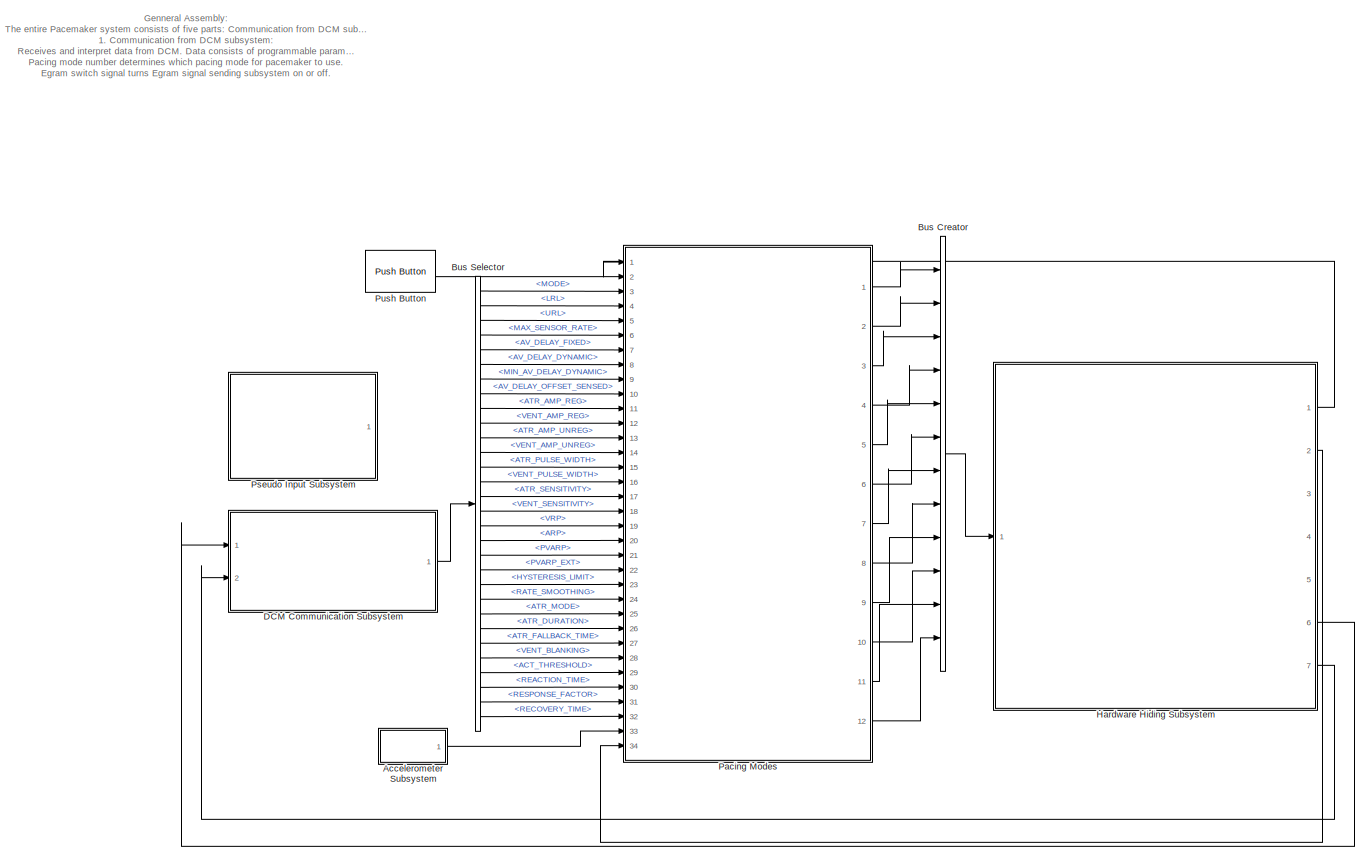
[diagram: root canvas - part 1/1, most of the canvas]
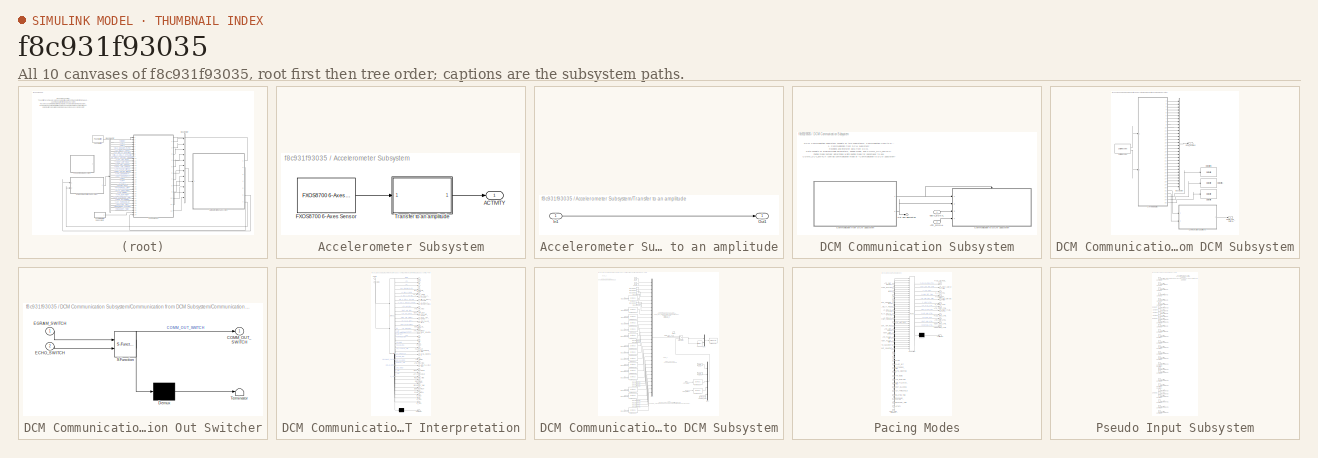
[diagram: thumbnail index - all 10 canvases of the model, root first then tree order]
MODEL slx_f8c931f93035
KIND model
CONFIG AbsTol = auto
CONFIG EnableMultiTasking = on
CONFIG FixedStep = 1e-3
CONFIG MaxStep = auto
CONFIG MinStep = auto
CONFIG RelTol = 1e-3
CONFIG SampleTimeConstraint = Unconstrained
CONFIG Solver = FixedStepAuto
CONFIG SolverName = FixedStepAuto
CONFIG StartTime = 0.0
CONFIG StopTime = 10.0
BLOCK [SubSystem] Accelerometer Subsystem
  Ports = [0, 1]
  RequestExecContextInheritance = off
BLOCK [Outport] Accelerometer Subsystem/ACTIVITY
BLOCK [Reference] Accelerometer Subsystem/FXOS8700 6-Axes Sensor  REF=frdmk64flib/FXOS8700 6-Axes Sensor
  Ports = [0, 1]
  SourceBlock = frdmk64flib/FXOS8700 6-Axes Sensor
  SourceProductBaseCode = EC_FRDM_K64F
  SourceType = freedomk64f.fxos8700
BLOCK [SubSystem] Accelerometer Subsystem/Transfer to an amplitude
  Ports = [1, 1]
  RequestExecContextInheritance = off
BLOCK [Inport] Accelerometer Subsystem/Transfer to an amplitude/In1
BLOCK [Outport] Accelerometer Subsystem/Transfer to an amplitude/Out1
BLOCK [BusCreator] Bus Creator
  DisplayOption = bar
  InheritFromInputs = on
  Inputs = 12
  Ports = [12, 1]
BLOCK [BusSelector] Bus Selector
  OutputSignals = MODE,LRL,URL,MAX_SENSOR_RATE,AV_DELAY_FIXED,AV_DELAY_DYNAMIC,MIN_AV_DELAY_DYNAMIC,AV_DELAY_OFFSET_SENSED,ATR_AMP_REG,VENT_AMP_REG,ATR_AMP_UNREG,VENT_AMP_UNREG,ATR_PULSE_WIDTH,VENT_PULSE_WIDTH,ATR_SENSITIVITY,VENT_SENSITIVITY,VRP,ARP,PVARP,PVARP_EXT,HYSTERESIS_LIMIT,RATE_SMOOTHING,ATR_MODE,ATR_DURATION,ATR_FALLBACK_TIME,VENT_BLANKING,ACT_THRESHOLD,REACTION_TIME,RESPONSE_FACTOR,RECOVERY_TIME
  Ports = [1, 30]
BLOCK [SubSystem] DCM Communication Subsystem
  Ports = [2, 1]
  RequestExecContextInheritance = off
BLOCK [Inport] DCM Communication Subsystem/ATR_SIGNAL
  OutDataTypeStr = double
  Port = 2
BLOCK [SubSystem] DCM Communication Subsystem/Communication from DCM Subsystem
  Ports = [0, 2]
  RequestExecContextInheritance = off
BLOCK [BusCreator] DCM Communication Subsystem/Communication from DCM Subsystem/Bus Creator
  DisplayOption = bar
  InheritFromInputs = on
  Inputs = 30
  Ports = [30, 1]
BLOCK [Outport] DCM Communication Subsystem/Communication from DCM Subsystem/COMM_OUT_SWITCH
BLOCK [SubSystem] DCM Communication Subsystem/Communication from DCM Subsystem/Communication Out Switcher
  ErrorFcn = Stateflow.Translate.translate
  PermitHierarchicalResolution = ExplicitOnly
  Ports = [2, 1]
  RequestExecContextInheritance = off
  SFBlockType = Chart
  TreatAsAtomicUnit = on
BLOCK [Demux] DCM Communication Subsystem/Communication from DCM Subsystem/Communication Out Switcher/ Demux 
  Outputs = 1
  Ports = [1, 1]
BLOCK [S-Function] DCM Communication Subsystem/Communication from DCM Subsystem/Communication Out Switcher/ SFunction 
  EnableBusSupport = on
  FunctionName = sf_sfun
  PortCounts = [2 2]
  Ports = [2, 2]
  SFcnIsStateOwnerBlock = off
  SFunctionDeploymentMode = off
  Tag = Stateflow S-Function 3
BLOCK [Terminator] DCM Communication Subsystem/Communication from DCM Subsystem/Communication Out Switcher/ Terminator 
BLOCK [Outport] DCM Communication Subsystem/Communication from DCM Subsystem/Communication Out Switcher/COMM_OUT_SWITCH
BLOCK [Inport] DCM Communication Subsystem/Communication from DCM Subsystem/Communication Out Switcher/ECHO_SWITCH
  Port = 2
BLOCK [Inport] DCM Communication Subsystem/Communication from DCM Subsystem/Communication Out Switcher/EGRAM_SWITCH
BLOCK [Outport] DCM Communication Subsystem/Communication from DCM Subsystem/DCM_InputBus
  Port = 2
BLOCK [Reference] DCM Communication Subsystem/Communication from DCM Subsystem/Digital Write  REF=frdmk64flib/Digital Write
  Commented = on
  Ports = [1]
  SourceBlock = frdmk64flib/Digital Write
  SourceProductBaseCode = EC_FRDM_K64F
  SourceType = freedomk64f.DigitalWrite
BLOCK [Reference] DCM Communication Subsystem/Communication from DCM Subsystem/Digital Write1  REF=frdmk64flib/Digital Write
  Commented = on
  Ports = [1]
  SourceBlock = frdmk64flib/Digital Write
  SourceProductBaseCode = EC_FRDM_K64F
  SourceType = freedomk64f.DigitalWrite
BLOCK [Reference] DCM Communication Subsystem/Communication from DCM Subsystem/Digital Write3  REF=frdmk64flib/Digital Write
  Commented = on
  Ports = [1]
  SourceBlock = frdmk64flib/Digital Write
  SourceProductBaseCode = EC_FRDM_K64F
  SourceType = freedomk64f.DigitalWrite
BLOCK [Reference] DCM Communication Subsystem/Communication from DCM Subsystem/Serial Receive  REF=frdmk64flib/Serial Receive
  Ports = [0, 2]
  SourceBlock = frdmk64flib/Serial Receive
  SourceProductBaseCode = EC_FRDM_K64F
  SourceType = freedomk64f.SCIRead
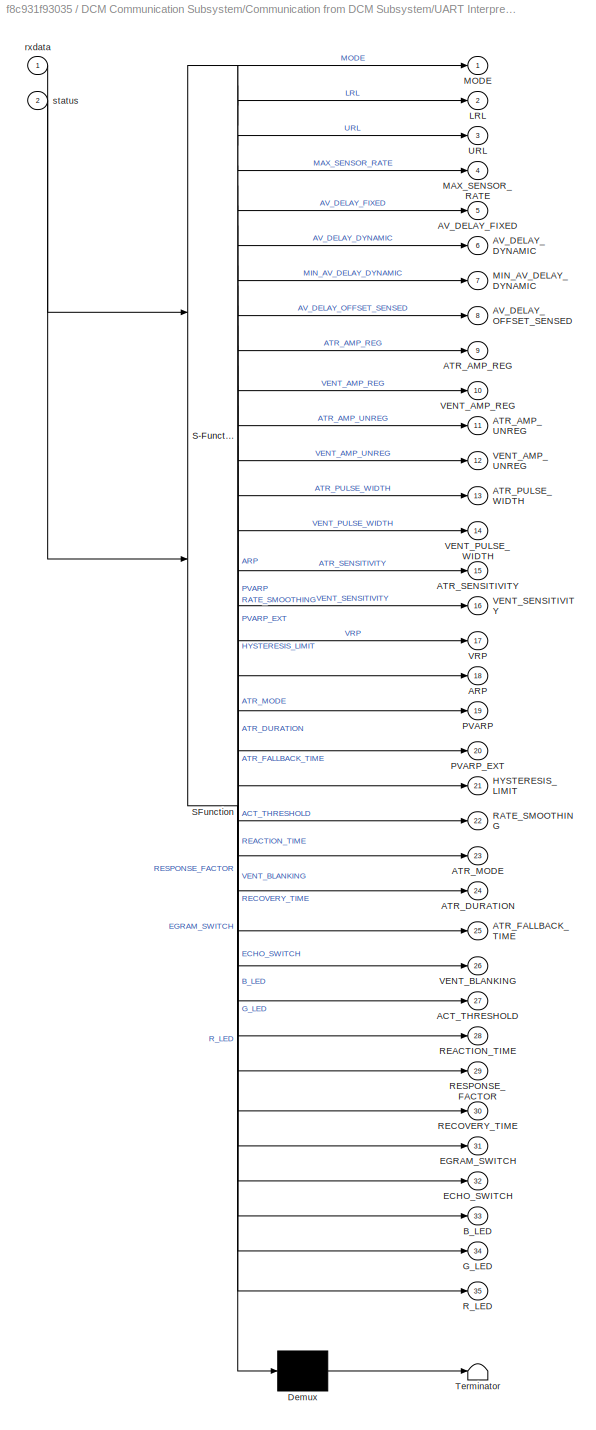
BLOCK [SubSystem] DCM Communication Subsystem/Communication from DCM Subsystem/UART Interpretation
  ErrorFcn = Stateflow.Translate.translate
  PermitHierarchicalResolution = ExplicitOnly
  Ports = [2, 35]
  RequestExecContextInheritance = off
  SFBlockType = Chart
  TreatAsAtomicUnit = on
BLOCK [Demux] DCM Communication Subsystem/Communication from DCM Subsystem/UART Interpretation/ Demux 
  Outputs = 1
  Ports = [1, 1]
BLOCK [S-Function] DCM Communication Subsystem/Communication from DCM Subsystem/UART Interpretation/ SFunction 
  EnableBusSupport = on
  FunctionName = sf_sfun
  PortCounts = [2 36]
  Ports = [2, 36]
  SFcnIsStateOwnerBlock = off
  SFunctionDeploymentMode = off
  Tag = Stateflow S-Function 4
BLOCK [Terminator] DCM Communication Subsystem/Communication from DCM Subsystem/UART Interpretation/ Terminator 
BLOCK [Outport] DCM Communication Subsystem/Communication from DCM Subsystem/UART Interpretation/ACT_THRESHOLD
  Port = 27
BLOCK [Outport] DCM Communication Subsystem/Communication from DCM Subsystem/UART Interpretation/ARP
  Port = 18
BLOCK [Outport] DCM Communication Subsystem/Communication from DCM Subsystem/UART Interpretation/ATR_AMP_REG
  Port = 9
BLOCK [Outport] DCM Communication Subsystem/Communication from DCM Subsystem/UART Interpretation/ATR_AMP_UNREG
  Port = 11
BLOCK [Outport] DCM Communication Subsystem/Communication from DCM Subsystem/UART Interpretation/ATR_DURATION
  Port = 24
BLOCK [Outport] DCM Communication Subsystem/Communication from DCM Subsystem/UART Interpretation/ATR_FALLBACK_TIME
  Port = 25
BLOCK [Outport] DCM Communication Subsystem/Communication from DCM Subsystem/UART Interpretation/ATR_MODE
  Port = 23
BLOCK [Outport] DCM Communication Subsystem/Communication from DCM Subsystem/UART Interpretation/ATR_PULSE_WIDTH
  Port = 13
BLOCK [Outport] DCM Communication Subsystem/Communication from DCM Subsystem/UART Interpretation/ATR_SENSITIVITY
  Port = 15
BLOCK [Outport] DCM Communication Subsystem/Communication from DCM Subsystem/UART Interpretation/AV_DELAY_DYNAMIC
  Port = 6
BLOCK [Outport] DCM Communication Subsystem/Communication from DCM Subsystem/UART Interpretation/AV_DELAY_FIXED
  Port = 5
BLOCK [Outport] DCM Communication Subsystem/Communication from DCM Subsystem/UART Interpretation/AV_DELAY_OFFSET_SENSED
  Port = 8
BLOCK [Outport] DCM Communication Subsystem/Communication from DCM Subsystem/UART Interpretation/B_LED
  Port = 33
BLOCK [Outport] DCM Communication Subsystem/Communication from DCM Subsystem/UART Interpretation/ECHO_SWITCH
  Port = 32
BLOCK [Outport] DCM Communication Subsystem/Communication from DCM Subsystem/UART Interpretation/EGRAM_SWITCH
  Port = 31
BLOCK [Outport] DCM Communication Subsystem/Communication from DCM Subsystem/UART Interpretation/G_LED
  Port = 34
BLOCK [Outport] DCM Communication Subsystem/Communication from DCM Subsystem/UART Interpretation/HYSTERESIS_LIMIT
  Port = 21
BLOCK [Outport] DCM Communication Subsystem/Communication from DCM Subsystem/UART Interpretation/LRL
  Port = 2
BLOCK [Outport] DCM Communication Subsystem/Communication from DCM Subsystem/UART Interpretation/MAX_SENSOR_RATE
  Port = 4
BLOCK [Outport] DCM Communication Subsystem/Communication from DCM Subsystem/UART Interpretation/MIN_AV_DELAY_DYNAMIC
  Port = 7
BLOCK [Outport] DCM Communication Subsystem/Communication from DCM Subsystem/UART Interpretation/MODE
BLOCK [Outport] DCM Communication Subsystem/Communication from DCM Subsystem/UART Interpretation/PVARP
  Port = 19
BLOCK [Outport] DCM Communication Subsystem/Communication from DCM Subsystem/UART Interpretation/PVARP_EXT
  Port = 20
BLOCK [Outport] DCM Communication Subsystem/Communication from DCM Subsystem/UART Interpretation/RATE_SMOOTHING
  Port = 22
BLOCK [Outport] DCM Communication Subsystem/Communication from DCM Subsystem/UART Interpretation/REACTION_TIME
  Port = 28
BLOCK [Outport] DCM Communication Subsystem/Communication from DCM Subsystem/UART Interpretation/RECOVERY_TIME
  Port = 30
BLOCK [Outport] DCM Communication Subsystem/Communication from DCM Subsystem/UART Interpretation/RESPONSE_FACTOR
  Port = 29
BLOCK [Outport] DCM Communication Subsystem/Communication from DCM Subsystem/UART Interpretation/R_LED
  Port = 35
BLOCK [Outport] DCM Communication Subsystem/Communication from DCM Subsystem/UART Interpretation/URL
  Port = 3
BLOCK [Outport] DCM Communication Subsystem/Communication from DCM Subsystem/UART Interpretation/VENT_AMP_REG
  Port = 10
BLOCK [Outport] DCM Communication Subsystem/Communication from DCM Subsystem/UART Interpretation/VENT_AMP_UNREG
  Port = 12
BLOCK [Outport] DCM Communication Subsystem/Communication from DCM Subsystem/UART Interpretation/VENT_BLANKING
  Port = 26
BLOCK [Outport] DCM Communication Subsystem/Communication from DCM Subsystem/UART Interpretation/VENT_PULSE_WIDTH
  Port = 14
BLOCK [Outport] DCM Communication Subsystem/Communication from DCM Subsystem/UART Interpretation/VENT_SENSITIVITY
  Port = 16
BLOCK [Outport] DCM Communication Subsystem/Communication from DCM Subsystem/UART Interpretation/VRP
  Port = 17
BLOCK [Inport] DCM Communication Subsystem/Communication from DCM Subsystem/UART Interpretation/rxdata
BLOCK [Inport] DCM Communication Subsystem/Communication from DCM Subsystem/UART Interpretation/status
  Port = 2
BLOCK [SubSystem] DCM Communication Subsystem/Communication to DCM Subsystem
  Ports = [4, 0, 0, 1]
  RequestExecContextInheritance = off
  TreatAsAtomicUnit = on
BLOCK [Inport] DCM Communication Subsystem/Communication to DCM Subsystem/ATR_SIGNAL
  OutDataTypeStr = double
  Port = 4
BLOCK [Reference] DCM Communication Subsystem/Communication to DCM Subsystem/Byte Pack  REF=etargetslib/Byte Pack
  Ports = [1, 1]
  SourceBlock = etargetslib/Byte Pack
  SourceProductBaseCode = ME
  SourceType = Byte pack
BLOCK [Reference] DCM Communication Subsystem/Communication to DCM Subsystem/Byte Pack1  REF=etargetslib/Byte Pack
  Ports = [1, 1]
  SourceBlock = etargetslib/Byte Pack
  SourceProductBaseCode = ME
  SourceType = Byte pack
BLOCK [Reference] DCM Communication Subsystem/Communication to DCM Subsystem/Byte Pack10  REF=etargetslib/Byte Pack
  Ports = [1, 1]
  SourceBlock = etargetslib/Byte Pack
  SourceProductBaseCode = ME
  SourceType = Byte pack
BLOCK [Reference] DCM Communication Subsystem/Communication to DCM Subsystem/Byte Pack11  REF=etargetslib/Byte Pack
  Ports = [1, 1]
  SourceBlock = etargetslib/Byte Pack
  SourceProductBaseCode = ME
  SourceType = Byte pack
BLOCK [Reference] DCM Communication Subsystem/Communication to DCM Subsystem/Byte Pack12  REF=etargetslib/Byte Pack
  Ports = [1, 1]
  SourceBlock = etargetslib/Byte Pack
  SourceProductBaseCode = ME
  SourceType = Byte pack
BLOCK [Reference] DCM Communication Subsystem/Communication to DCM Subsystem/Byte Pack13  REF=etargetslib/Byte Pack
  Ports = [1, 1]
  SourceBlock = etargetslib/Byte Pack
  SourceProductBaseCode = ME
  SourceType = Byte pack
BLOCK [Reference] DCM Communication Subsystem/Communication to DCM Subsystem/Byte Pack14  REF=etargetslib/Byte Pack
  Ports = [1, 1]
  SourceBlock = etargetslib/Byte Pack
  SourceProductBaseCode = ME
  SourceType = Byte pack
BLOCK [Reference] DCM Communication Subsystem/Communication to DCM Subsystem/Byte Pack15  REF=etargetslib/Byte Pack
  Ports = [1, 1]
  SourceBlock = etargetslib/Byte Pack
  SourceProductBaseCode = ME
  SourceType = Byte pack
BLOCK [Reference] DCM Communication Subsystem/Communication to DCM Subsystem/Byte Pack16  REF=etargetslib/Byte Pack
  Ports = [1, 1]
  SourceBlock = etargetslib/Byte Pack
  SourceProductBaseCode = ME
  SourceType = Byte pack
BLOCK [Reference] DCM Communication Subsystem/Communication to DCM Subsystem/Byte Pack2  REF=etargetslib/Byte Pack
  Ports = [1, 1]
  SourceBlock = etargetslib/Byte Pack
  SourceProductBaseCode = ME
  SourceType = Byte pack
BLOCK [Reference] DCM Communication Subsystem/Communication to DCM Subsystem/Byte Pack3  REF=etargetslib/Byte Pack
  Ports = [1, 1]
  SourceBlock = etargetslib/Byte Pack
  SourceProductBaseCode = ME
  SourceType = Byte pack
BLOCK [Reference] DCM Communication Subsystem/Communication to DCM Subsystem/Byte Pack4  REF=etargetslib/Byte Pack
  Ports = [1, 1]
  SourceBlock = etargetslib/Byte Pack
  SourceProductBaseCode = ME
  SourceType = Byte pack
BLOCK [Reference] DCM Communication Subsystem/Communication to DCM Subsystem/Byte Pack5  REF=etargetslib/Byte Pack
  Ports = [1, 1]
  SourceBlock = etargetslib/Byte Pack
  SourceProductBaseCode = ME
  SourceType = Byte pack
BLOCK [Reference] DCM Communication Subsystem/Communication to DCM Subsystem/Byte Pack6  REF=etargetslib/Byte Pack
  Ports = [1, 1]
  SourceBlock = etargetslib/Byte Pack
  SourceProductBaseCode = ME
  SourceType = Byte pack
BLOCK [Reference] DCM Communication Subsystem/Communication to DCM Subsystem/Byte Pack7  REF=etargetslib/Byte Pack
  Ports = [1, 1]
  SourceBlock = etargetslib/Byte Pack
  SourceProductBaseCode = ME
  SourceType = Byte pack
BLOCK [Reference] DCM Communication Subsystem/Communication to DCM Subsystem/Byte Pack8  REF=etargetslib/Byte Pack
  Ports = [1, 1]
  SourceBlock = etargetslib/Byte Pack
  SourceProductBaseCode = ME
  SourceType = Byte pack
BLOCK [Reference] DCM Communication Subsystem/Communication to DCM Subsystem/Byte Pack9  REF=etargetslib/Byte Pack
  Ports = [1, 1]
  SourceBlock = etargetslib/Byte Pack
  SourceProductBaseCode = ME
  SourceType = Byte pack
BLOCK [Inport] DCM Communication Subsystem/Communication to DCM Subsystem/COMM_OUT_SWITCH
BLOCK [Reference] DCM Communication Subsystem/Communication to DCM Subsystem/CheckSum  REF=simulink/Logic and Bit
Operations/Bitwise
Operator
  Ports = [1, 1]
  SourceBlock = simulink/Logic and Bit\nOperations/Bitwise\nOperator
  SourceProductBaseCode = SL
  SourceType = Bitwise Operator
BLOCK [Constant] DCM Communication Subsystem/Communication to DCM Subsystem/FnCode
  OutDataTypeStr = uint8
  Value = 0x04
BLOCK [Constant] DCM Communication Subsystem/Communication to DCM Subsystem/FnCode1
  OutDataTypeStr = uint8
  Value = 0x05
BLOCK [Inport] DCM Communication Subsystem/Communication to DCM Subsystem/In Bus Element
  Port = 2
BLOCK [Inport] DCM Communication Subsystem/Communication to DCM Subsystem/In Bus Element1
  Port = 2
BLOCK [Inport] DCM Communication Subsystem/Communication to DCM Subsystem/In Bus Element10
  Port = 2
BLOCK [Inport] DCM Communication Subsystem/Communication to DCM Subsystem/In Bus Element12
  Port = 2
BLOCK [Inport] DCM Communication Subsystem/Communication to DCM Subsystem/In Bus Element13
  Port = 2
BLOCK [Inport] DCM Communication Subsystem/Communication to DCM Subsystem/In Bus Element14
  Port = 2
BLOCK [Inport] DCM Communication Subsystem/Communication to DCM Subsystem/In Bus Element15
  Port = 2
BLOCK [Inport] DCM Communication Subsystem/Communication to DCM Subsystem/In Bus Element16
  Port = 2
BLOCK [Inport] DCM Communication Subsystem/Communication to DCM Subsystem/In Bus Element17
  Port = 2
BLOCK [Inport] DCM Communication Subsystem/Communication to DCM Subsystem/In Bus Element18
  Port = 2
BLOCK [Inport] DCM Communication Subsystem/Communication to DCM Subsystem/In Bus Element19
  Port = 2
BLOCK [Inport] DCM Communication Subsystem/Communication to DCM Subsystem/In Bus Element2
  Port = 2
BLOCK [Inport] DCM Communication Subsystem/Communication to DCM Subsystem/In Bus Element20
  Port = 2
BLOCK [Inport] DCM Communication Subsystem/Communication to DCM Subsystem/In Bus Element21
  Port = 2
BLOCK [Inport] DCM Communication Subsystem/Communication to DCM Subsystem/In Bus Element22
  Port = 2
BLOCK [Inport] DCM Communication Subsystem/Communication to DCM Subsystem/In Bus Element23
  Port = 2
BLOCK [Inport] DCM Communication Subsystem/Communication to DCM Subsystem/In Bus Element24
  Port = 2
BLOCK [Inport] DCM Communication Subsystem/Communication to DCM Subsystem/In Bus Element25
  Port = 2
BLOCK [Inport] DCM Communication Subsystem/Communication to DCM Subsystem/In Bus Element26
  Port = 2
BLOCK [Inport] DCM Communication Subsystem/Communication to DCM Subsystem/In Bus Element27
  Port = 2
BLOCK [Inport] DCM Communication Subsystem/Communication to DCM Subsystem/In Bus Element28
  Port = 2
BLOCK [Inport] DCM Communication Subsystem/Communication to DCM Subsystem/In Bus Element29
  Port = 2
BLOCK [Inport] DCM Communication Subsystem/Communication to DCM Subsystem/In Bus Element3
  Port = 2
BLOCK [Inport] DCM Communication Subsystem/Communication to DCM Subsystem/In Bus Element30
  Port = 2
BLOCK [Inport] DCM Communication Subsystem/Communication to DCM Subsystem/In Bus Element4
  Port = 2
BLOCK [Inport] DCM Communication Subsystem/Communication to DCM Subsystem/In Bus Element5
  Port = 2
BLOCK [Inport] DCM Communication Subsystem/Communication to DCM Subsystem/In Bus Element6
  Port = 2
BLOCK [Inport] DCM Communication Subsystem/Communication to DCM Subsystem/In Bus Element7
  Port = 2
BLOCK [Inport] DCM Communication Subsystem/Communication to DCM Subsystem/In Bus Element8
  Port = 2
BLOCK [Inport] DCM Communication Subsystem/Communication to DCM Subsystem/In Bus Element9
  Port = 2
BLOCK [MultiPortSwitch] DCM Communication Subsystem/Communication to DCM Subsystem/Multiport Switch
  InputSameDT = off
  Inputs = 2
  Ports = [3, 1]
  SaturateOnIntegerOverflow = off
BLOCK [Mux] DCM Communication Subsystem/Communication to DCM Subsystem/Mux
  DisplayOption = bar
  Inputs = 32
  Ports = [32, 1]
BLOCK [Mux] DCM Communication Subsystem/Communication to DCM Subsystem/Mux1
  DisplayOption = bar
  Inputs = 2
  Ports = [2, 1]
BLOCK [Mux] DCM Communication Subsystem/Communication to DCM Subsystem/Mux2
  DisplayOption = bar
  Inputs = 5
  Ports = [5, 1]
BLOCK [Constant] DCM Communication Subsystem/Communication to DCM Subsystem/Padding_zeros
  OutDataTypeStr = uint8
  Value = zeros(1,40)
  VectorParams1D = off
BLOCK [Reference] DCM Communication Subsystem/Communication to DCM Subsystem/Serial Transmit  REF=frdmk64flib/Serial Transmit
  Ports = [1]
  SourceBlock = frdmk64flib/Serial Transmit
  SourceProductBaseCode = EC_FRDM_K64F
  SourceType = freedomk64f.SCIWrite
BLOCK [Constant] DCM Communication Subsystem/Communication to DCM Subsystem/Sync
  OutDataTypeStr = uint8
  Value = 0x55
BLOCK [Constant] DCM Communication Subsystem/Communication to DCM Subsystem/Sync1
  OutDataTypeStr = uint8
  Value = 0x55
BLOCK [TriggerPort] DCM Communication Subsystem/Communication to DCM Subsystem/Trigger
  InitialTriggerSignalState = zero
  PortDimensions = 1
  Ports = []
  StatesWhenEnabling = held
  VariantControl = Variant
BLOCK [Inport] DCM Communication Subsystem/Communication to DCM Subsystem/VENT_SIGNAL
  OutDataTypeStr = double
  Port = 3
BLOCK [Outport] DCM Communication Subsystem/Out Bus Element30
BLOCK [Inport] DCM Communication Subsystem/VENT_SIGNAL
  OutDataTypeStr = double
BLOCK [SubSystem] Hardware Hiding Subsystem
  Ports = [1, 7]
  ReferencedSubsystem = k64f_hardware_subsystem
  RequestExecContextInheritance = off
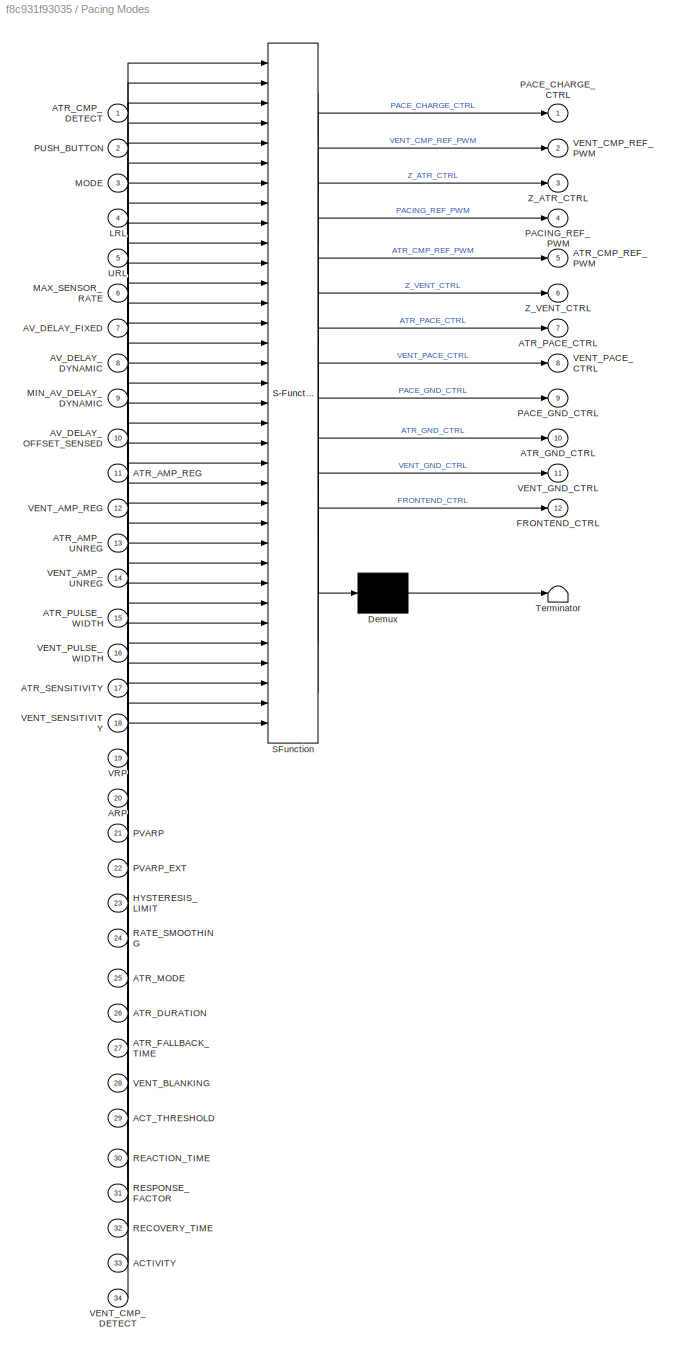
BLOCK [SubSystem] Pacing Modes
  ErrorFcn = Stateflow.Translate.translate
  PermitHierarchicalResolution = ExplicitOnly
  Ports = [34, 12]
  RequestExecContextInheritance = off
  SFBlockType = Chart
  TreatAsAtomicUnit = on
BLOCK [Demux] Pacing Modes/ Demux 
  Outputs = 1
  Ports = [1, 1]
BLOCK [S-Function] Pacing Modes/ SFunction 
  EnableBusSupport = on
  FunctionName = sf_sfun
  PortCounts = [34 13]
  Ports = [34, 13]
  SFcnIsStateOwnerBlock = off
  SFunctionDeploymentMode = off
  Tag = Stateflow S-Function 6
BLOCK [Terminator] Pacing Modes/ Terminator 
BLOCK [Inport] Pacing Modes/ACTIVITY
  Port = 33
BLOCK [Inport] Pacing Modes/ACT_THRESHOLD
  Port = 29
BLOCK [Inport] Pacing Modes/ARP
  Port = 20
BLOCK [Inport] Pacing Modes/ATR_AMP_REG
  Port = 11
BLOCK [Inport] Pacing Modes/ATR_AMP_UNREG
  Port = 13
BLOCK [Inport] Pacing Modes/ATR_CMP_DETECT
BLOCK [Outport] Pacing Modes/ATR_CMP_REF_PWM
  Port = 5
BLOCK [Inport] Pacing Modes/ATR_DURATION
  Port = 26
BLOCK [Inport] Pacing Modes/ATR_FALLBACK_TIME
  Port = 27
BLOCK [Outport] Pacing Modes/ATR_GND_CTRL
  Port = 10
BLOCK [Inport] Pacing Modes/ATR_MODE
  Port = 25
BLOCK [Outport] Pacing Modes/ATR_PACE_CTRL
  Port = 7
BLOCK [Inport] Pacing Modes/ATR_PULSE_WIDTH
  Port = 15
BLOCK [Inport] Pacing Modes/ATR_SENSITIVITY
  Port = 17
BLOCK [Inport] Pacing Modes/AV_DELAY_DYNAMIC
  Port = 8
BLOCK [Inport] Pacing Modes/AV_DELAY_FIXED
  Port = 7
BLOCK [Inport] Pacing Modes/AV_DELAY_OFFSET_SENSED
  Port = 10
BLOCK [Outport] Pacing Modes/FRONTEND_CTRL
  Port = 12
BLOCK [Inport] Pacing Modes/HYSTERESIS_LIMIT
  Port = 23
BLOCK [Inport] Pacing Modes/LRL
  Port = 4
BLOCK [Inport] Pacing Modes/MAX_SENSOR_RATE
  Port = 6
BLOCK [Inport] Pacing Modes/MIN_AV_DELAY_DYNAMIC
  Port = 9
BLOCK [Inport] Pacing Modes/MODE
  Port = 3
BLOCK [Outport] Pacing Modes/PACE_CHARGE_CTRL
BLOCK [Outport] Pacing Modes/PACE_GND_CTRL
  Port = 9
BLOCK [Outport] Pacing Modes/PACING_REF_PWM
  Port = 4
BLOCK [Inport] Pacing Modes/PUSH_BUTTON
  Port = 2
BLOCK [Inport] Pacing Modes/PVARP
  Port = 21
BLOCK [Inport] Pacing Modes/PVARP_EXT
  Port = 22
BLOCK [Inport] Pacing Modes/RATE_SMOOTHING
  Port = 24
BLOCK [Inport] Pacing Modes/REACTION_TIME
  Port = 30
BLOCK [Inport] Pacing Modes/RECOVERY_TIME
  Port = 32
BLOCK [Inport] Pacing Modes/RESPONSE_FACTOR
  Port = 31
BLOCK [Inport] Pacing Modes/URL
  Port = 5
BLOCK [Inport] Pacing Modes/VENT_AMP_REG
  Port = 12
BLOCK [Inport] Pacing Modes/VENT_AMP_UNREG
  Port = 14
BLOCK [Inport] Pacing Modes/VENT_BLANKING
  Port = 28
BLOCK [Inport] Pacing Modes/VENT_CMP_DETECT
  Port = 34
BLOCK [Outport] Pacing Modes/VENT_CMP_REF_PWM
  Port = 2
BLOCK [Outport] Pacing Modes/VENT_GND_CTRL
  Port = 11
BLOCK [Outport] Pacing Modes/VENT_PACE_CTRL
  Port = 8
BLOCK [Inport] Pacing Modes/VENT_PULSE_WIDTH
  Port = 16
BLOCK [Inport] Pacing Modes/VENT_SENSITIVITY
  Port = 18
BLOCK [Inport] Pacing Modes/VRP
  Port = 19
BLOCK [Outport] Pacing Modes/Z_ATR_CTRL
  Port = 3
BLOCK [Outport] Pacing Modes/Z_VENT_CTRL
  Port = 6
BLOCK [SubSystem] Pseudo Input Subsystem
  Commented = on
  Ports = [0, 1]
  RequestExecContextInheritance = off
BLOCK [Constant] Pseudo Input Subsystem/Constant1
  Value = 60
BLOCK [Constant] Pseudo Input Subsystem/Constant10
BLOCK [Constant] Pseudo Input Subsystem/Constant11
  Value = 4
BLOCK [Constant] Pseudo Input Subsystem/Constant12
  Value = 4
BLOCK [Constant] Pseudo Input Subsystem/Constant13
  Value = 320
BLOCK [Constant] Pseudo Input Subsystem/Constant14
  Value = 250
BLOCK [Constant] Pseudo Input Subsystem/Constant15
  Value = 250
BLOCK [Constant] Pseudo Input Subsystem/Constant16
  Value = 0
BLOCK [Constant] Pseudo Input Subsystem/Constant17
  Value = false
BLOCK [Constant] Pseudo Input Subsystem/Constant18
  Value = 0
BLOCK [Constant] Pseudo Input Subsystem/Constant19
  Value = 20
BLOCK [Constant] Pseudo Input Subsystem/Constant2
  Value = 120
BLOCK [Constant] Pseudo Input Subsystem/Constant20
  Value = 0
BLOCK [Constant] Pseudo Input Subsystem/Constant21
  Value = 60
BLOCK [Constant] Pseudo Input Subsystem/Constant22
  Value = 3
BLOCK [Constant] Pseudo Input Subsystem/Constant23
  Value = 30
BLOCK [Constant] Pseudo Input Subsystem/Constant24
  Value = 8
BLOCK [Constant] Pseudo Input Subsystem/Constant25
  Value = 300
BLOCK [Constant] Pseudo Input Subsystem/Constant26
  Value = 5
BLOCK [Constant] Pseudo Input Subsystem/Constant27
  Value = 50
BLOCK [Constant] Pseudo Input Subsystem/Constant28
  Value = 3.75
BLOCK [Constant] Pseudo Input Subsystem/Constant29
  Value = 3.75
BLOCK [Constant] Pseudo Input Subsystem/Constant3
  Value = 120
BLOCK [Constant] Pseudo Input Subsystem/Constant31
  Value = 40
BLOCK [Constant] Pseudo Input Subsystem/Constant4
  Value = 150
BLOCK [Constant] Pseudo Input Subsystem/Constant5
  Value = false
BLOCK [Constant] Pseudo Input Subsystem/Constant6
  Value = 0
BLOCK [Constant] Pseudo Input Subsystem/Constant7
  Value = 5
BLOCK [Constant] Pseudo Input Subsystem/Constant8
  Value = 5
BLOCK [Constant] Pseudo Input Subsystem/Constant9
BLOCK [Outport] Pseudo Input Subsystem/Out Bus Element
BLOCK [Outport] Pseudo Input Subsystem/Out Bus Element1
BLOCK [Outport] Pseudo Input Subsystem/Out Bus Element10
BLOCK [Outport] Pseudo Input Subsystem/Out Bus Element11
BLOCK [Outport] Pseudo Input Subsystem/Out Bus Element12
BLOCK [Outport] Pseudo Input Subsystem/Out Bus Element13
BLOCK [Outport] Pseudo Input Subsystem/Out Bus Element14
BLOCK [Outport] Pseudo Input Subsystem/Out Bus Element15
BLOCK [Outport] Pseudo Input Subsystem/Out Bus Element16
BLOCK [Outport] Pseudo Input Subsystem/Out Bus Element17
BLOCK [Outport] Pseudo Input Subsystem/Out Bus Element18
BLOCK [Outport] Pseudo Input Subsystem/Out Bus Element19
BLOCK [Outport] Pseudo Input Subsystem/Out Bus Element2
BLOCK [Outport] Pseudo Input Subsystem/Out Bus Element20
BLOCK [Outport] Pseudo Input Subsystem/Out Bus Element21
BLOCK [Outport] Pseudo Input Subsystem/Out Bus Element22
BLOCK [Outport] Pseudo Input Subsystem/Out Bus Element23
BLOCK [Outport] Pseudo Input Subsystem/Out Bus Element24
BLOCK [Outport] Pseudo Input Subsystem/Out Bus Element25
BLOCK [Outport] Pseudo Input Subsystem/Out Bus Element26
BLOCK [Outport] Pseudo Input Subsystem/Out Bus Element27
BLOCK [Outport] Pseudo Input Subsystem/Out Bus Element28
BLOCK [Outport] Pseudo Input Subsystem/Out Bus Element3
BLOCK [Outport] Pseudo Input Subsystem/Out Bus Element30
BLOCK [Outport] Pseudo Input Subsystem/Out Bus Element4
BLOCK [Outport] Pseudo Input Subsystem/Out Bus Element5
BLOCK [Outport] Pseudo Input Subsystem/Out Bus Element6
BLOCK [Outport] Pseudo Input Subsystem/Out Bus Element7
BLOCK [Outport] Pseudo Input Subsystem/Out Bus Element8
BLOCK [Outport] Pseudo Input Subsystem/Out Bus Element9
BLOCK [Reference] Push Button  REF=frdmk64flib/Push Button
  Ports = [0, 1]
  SourceBlock = frdmk64flib/Push Button
  SourceProductBaseCode = EC_FRDM_K64F
  SourceType = freedomk64f.PushButton
ANNOTATION (root): Genneral Assembly: The entire Pacemaker system consists of five parts: Communication from DCM subsystem, Pacing mode charts, Hardware hiding subsystem, Communication to DCM Subsystem. 1. Communication from DCM subsystem: Receives and interpret data from DCM. Data consists of programmable parameters, pacing mode number, Egram switch signal, and Echo switch signal. Pacing mode number determines whic...<+605ch>
ANNOTATION DCM Communication Subsystem: DCM Communication Subsystem consists of two subsystems: Communication from/to DCM Subsystem. 1. Communication from DCM subsystem: Receives and interpret data from DCM. Data consists of programmable parameters, pacing mode, and COMM_OUT_SWITCH. Pacing mode number determines which pacing mode for pacemaker to use. COMM_OUT_SWITCH controls communication mode of “Communication to DCM Subsystem” 2. Com...<+181ch>
ANNOTATION DCM Communication Subsystem/Communication to DCM Subsystem: Notes: 1. Byte Pack block sends data in little-endian style 2. Padding_zeros are added because package size is fixed to be 59 bytes. Padding_zeros are added for alignment.
ANNOTATION DCM Communication Subsystem/Communication to DCM Subsystem: Parameters Sending Subsystem: Sends programmable parameters to DCM COMM_OUT_SWITCH controls communication mode: 0 -> stop sending 1 -> echo_s 2 -> egram_s Notes: 1. Byte Pack sends data in little-endian style. 2. CheckSum is XOR of all inputs. It is added to make communication more reliable.
ANNOTATION DCM Communication Subsystem/Communication to DCM Subsystem: echo_s
ANNOTATION DCM Communication Subsystem/Communication to DCM Subsystem: echo_s package: send programmable parameters to DCM
ANNOTATION DCM Communication Subsystem/Communication to DCM Subsystem: egram_s
ANNOTATION DCM Communication Subsystem/Communication to DCM Subsystem: egram_s package: send egram signals to DCM
ANNOTATION Pseudo Input Subsystem: Constant Input Subsystem: Pseudo inputs for debugging. Parameters: (in the order listed in table A of "Pacemaker System Specification.pdf") LRL: in ppm URL: in ppm MAX_SENSOR_RATE: in ppm AV_DELAY_FIXED: in msec AV_DELAY_DYNAMIC: on/off AV_DELAY_OFFSET: in msec ("off" represented by 0) ATR_AMP: in V VENT_AMP: in V ATR_PULSE_WIDTH: in msec (must be greater than 1ms, due to limitation in the hardwar...<+461ch>
LINE Accelerometer Subsystem/FXOS8700 6-Axes Sensor:1 -> Accelerometer Subsystem/Transfer to an amplitude:1
LINE Accelerometer Subsystem/Transfer to an amplitude/In1:1 -> Accelerometer Subsystem/Transfer to an amplitude/Out1:1
LINE Accelerometer Subsystem/Transfer to an amplitude:1 -> Accelerometer Subsystem/ACTIVITY:1
LINE Accelerometer Subsystem:1 -> Pacing Modes:33
LINE Bus Creator:1 -> Hardware Hiding Subsystem:1
LINE Bus Selector:1 -> Pacing Modes:3
LINE Bus Selector:10 -> Pacing Modes:12
LINE Bus Selector:11 -> Pacing Modes:13
LINE Bus Selector:12 -> Pacing Modes:14
LINE Bus Selector:13 -> Pacing Modes:15
LINE Bus Selector:14 -> Pacing Modes:16
LINE Bus Selector:15 -> Pacing Modes:17
LINE Bus Selector:16 -> Pacing Modes:18
LINE Bus Selector:17 -> Pacing Modes:19
LINE Bus Selector:18 -> Pacing Modes:20
LINE Bus Selector:19 -> Pacing Modes:21
LINE Bus Selector:2 -> Pacing Modes:4
LINE Bus Selector:20 -> Pacing Modes:22
LINE Bus Selector:21 -> Pacing Modes:23
LINE Bus Selector:22 -> Pacing Modes:24
LINE Bus Selector:23 -> Pacing Modes:25
LINE Bus Selector:24 -> Pacing Modes:26
LINE Bus Selector:25 -> Pacing Modes:27
LINE Bus Selector:26 -> Pacing Modes:28
LINE Bus Selector:27 -> Pacing Modes:29
LINE Bus Selector:28 -> Pacing Modes:30
LINE Bus Selector:29 -> Pacing Modes:31
LINE Bus Selector:3 -> Pacing Modes:5
LINE Bus Selector:30 -> Pacing Modes:32
LINE Bus Selector:4 -> Pacing Modes:6
LINE Bus Selector:5 -> Pacing Modes:7
LINE Bus Selector:6 -> Pacing Modes:8
LINE Bus Selector:7 -> Pacing Modes:9
LINE Bus Selector:8 -> Pacing Modes:10
LINE Bus Selector:9 -> Pacing Modes:11
LINE DCM Communication Subsystem/ATR_SIGNAL:1 -> DCM Communication Subsystem/Communication to DCM Subsystem:4
LINE DCM Communication Subsystem/Communication from DCM Subsystem/Bus Creator:1 -> DCM Communication Subsystem/Communication from DCM Subsystem/DCM_InputBus:1
LINE DCM Communication Subsystem/Communication from DCM Subsystem/Communication Out Switcher:1 -> DCM Communication Subsystem/Communication from DCM Subsystem/COMM_OUT_SWITCH:1
LINE DCM Communication Subsystem/Communication from DCM Subsystem/Serial Receive:1 -> DCM Communication Subsystem/Communication from DCM Subsystem/UART Interpretation:1
LINE DCM Communication Subsystem/Communication from DCM Subsystem/Serial Receive:2 -> DCM Communication Subsystem/Communication from DCM Subsystem/UART Interpretation:2
LINE DCM Communication Subsystem/Communication from DCM Subsystem/UART Interpretation:1 -> DCM Communication Subsystem/Communication from DCM Subsystem/Bus Creator:1
LINE DCM Communication Subsystem/Communication from DCM Subsystem/UART Interpretation:10 -> DCM Communication Subsystem/Communication from DCM Subsystem/Bus Creator:10
LINE DCM Communication Subsystem/Communication from DCM Subsystem/UART Interpretation:11 -> DCM Communication Subsystem/Communication from DCM Subsystem/Bus Creator:11
LINE DCM Communication Subsystem/Communication from DCM Subsystem/UART Interpretation:12 -> DCM Communication Subsystem/Communication from DCM Subsystem/Bus Creator:12
LINE DCM Communication Subsystem/Communication from DCM Subsystem/UART Interpretation:13 -> DCM Communication Subsystem/Communication from DCM Subsystem/Bus Creator:13
LINE DCM Communication Subsystem/Communication from DCM Subsystem/UART Interpretation:14 -> DCM Communication Subsystem/Communication from DCM Subsystem/Bus Creator:14
LINE DCM Communication Subsystem/Communication from DCM Subsystem/UART Interpretation:15 -> DCM Communication Subsystem/Communication from DCM Subsystem/Bus Creator:15
LINE DCM Communication Subsystem/Communication from DCM Subsystem/UART Interpretation:16 -> DCM Communication Subsystem/Communication from DCM Subsystem/Bus Creator:16
LINE DCM Communication Subsystem/Communication from DCM Subsystem/UART Interpretation:17 -> DCM Communication Subsystem/Communication from DCM Subsystem/Bus Creator:17
LINE DCM Communication Subsystem/Communication from DCM Subsystem/UART Interpretation:18 -> DCM Communication Subsystem/Communication from DCM Subsystem/Bus Creator:18
LINE DCM Communication Subsystem/Communication from DCM Subsystem/UART Interpretation:19 -> DCM Communication Subsystem/Communication from DCM Subsystem/Bus Creator:19
LINE DCM Communication Subsystem/Communication from DCM Subsystem/UART Interpretation:2 -> DCM Communication Subsystem/Communication from DCM Subsystem/Bus Creator:2
LINE DCM Communication Subsystem/Communication from DCM Subsystem/UART Interpretation:20 -> DCM Communication Subsystem/Communication from DCM Subsystem/Bus Creator:20
LINE DCM Communication Subsystem/Communication from DCM Subsystem/UART Interpretation:21 -> DCM Communication Subsystem/Communication from DCM Subsystem/Bus Creator:21
LINE DCM Communication Subsystem/Communication from DCM Subsystem/UART Interpretation:22 -> DCM Communication Subsystem/Communication from DCM Subsystem/Bus Creator:22
LINE DCM Communication Subsystem/Communication from DCM Subsystem/UART Interpretation:23 -> DCM Communication Subsystem/Communication from DCM Subsystem/Bus Creator:23
LINE DCM Communication Subsystem/Communication from DCM Subsystem/UART Interpretation:24 -> DCM Communication Subsystem/Communication from DCM Subsystem/Bus Creator:24
LINE DCM Communication Subsystem/Communication from DCM Subsystem/UART Interpretation:25 -> DCM Communication Subsystem/Communication from DCM Subsystem/Bus Creator:25
LINE DCM Communication Subsystem/Communication from DCM Subsystem/UART Interpretation:26 -> DCM Communication Subsystem/Communication from DCM Subsystem/Bus Creator:26
LINE DCM Communication Subsystem/Communication from DCM Subsystem/UART Interpretation:27 -> DCM Communication Subsystem/Communication from DCM Subsystem/Bus Creator:27
LINE DCM Communication Subsystem/Communication from DCM Subsystem/UART Interpretation:28 -> DCM Communication Subsystem/Communication from DCM Subsystem/Bus Creator:28
LINE DCM Communication Subsystem/Communication from DCM Subsystem/UART Interpretation:29 -> DCM Communication Subsystem/Communication from DCM Subsystem/Bus Creator:29
LINE DCM Communication Subsystem/Communication from DCM Subsystem/UART Interpretation:3 -> DCM Communication Subsystem/Communication from DCM Subsystem/Bus Creator:3
LINE DCM Communication Subsystem/Communication from DCM Subsystem/UART Interpretation:30 -> DCM Communication Subsystem/Communication from DCM Subsystem/Bus Creator:30
LINE DCM Communication Subsystem/Communication from DCM Subsystem/UART Interpretation:31 -> DCM Communication Subsystem/Communication from DCM Subsystem/Communication Out Switcher:1
LINE DCM Communication Subsystem/Communication from DCM Subsystem/UART Interpretation:32 -> DCM Communication Subsystem/Communication from DCM Subsystem/Communication Out Switcher:2
LINE DCM Communication Subsystem/Communication from DCM Subsystem/UART Interpretation:33 -> DCM Communication Subsystem/Communication from DCM Subsystem/Digital Write3:1
LINE DCM Communication Subsystem/Communication from DCM Subsystem/UART Interpretation:34 -> DCM Communication Subsystem/Communication from DCM Subsystem/Digital Write1:1
LINE DCM Communication Subsystem/Communication from DCM Subsystem/UART Interpretation:35 -> DCM Communication Subsystem/Communication from DCM Subsystem/Digital Write:1
LINE DCM Communication Subsystem/Communication from DCM Subsystem/UART Interpretation:4 -> DCM Communication Subsystem/Communication from DCM Subsystem/Bus Creator:4
LINE DCM Communication Subsystem/Communication from DCM Subsystem/UART Interpretation:5 -> DCM Communication Subsystem/Communication from DCM Subsystem/Bus Creator:5
LINE DCM Communication Subsystem/Communication from DCM Subsystem/UART Interpretation:6 -> DCM Communication Subsystem/Communication from DCM Subsystem/Bus Creator:6
LINE DCM Communication Subsystem/Communication from DCM Subsystem/UART Interpretation:7 -> DCM Communication Subsystem/Communication from DCM Subsystem/Bus Creator:7
LINE DCM Communication Subsystem/Communication from DCM Subsystem/UART Interpretation:8 -> DCM Communication Subsystem/Communication from DCM Subsystem/Bus Creator:8
LINE DCM Communication Subsystem/Communication from DCM Subsystem/UART Interpretation:9 -> DCM Communication Subsystem/Communication from DCM Subsystem/Bus Creator:9
NET DCM Communication Subsystem/Communication from DCM Subsystem:1 -> DCM Communication Subsystem/Communication to DCM Subsystem:1, DCM Communication Subsystem/Communication to DCM Subsystem:trigger
NET DCM Communication Subsystem/Communication from DCM Subsystem:2 -> DCM Communication Subsystem/Communication to DCM Subsystem:2, DCM Communication Subsystem/Out Bus Element30:1
LINE DCM Communication Subsystem/Communication to DCM Subsystem/ATR_SIGNAL:1 -> DCM Communication Subsystem/Communication to DCM Subsystem/Byte Pack14:1
LINE DCM Communication Subsystem/Communication to DCM Subsystem/Byte Pack10:1 -> DCM Communication Subsystem/Communication to DCM Subsystem/Mux:22
LINE DCM Communication Subsystem/Communication to DCM Subsystem/Byte Pack11:1 -> DCM Communication Subsystem/Communication to DCM Subsystem/Mux:27
LINE DCM Communication Subsystem/Communication to DCM Subsystem/Byte Pack12:1 -> DCM Communication Subsystem/Communication to DCM Subsystem/Mux:26
LINE DCM Communication Subsystem/Communication to DCM Subsystem/Byte Pack13:1 -> DCM Communication Subsystem/Communication to DCM Subsystem/Mux:32
LINE DCM Communication Subsystem/Communication to DCM Subsystem/Byte Pack14:1 -> DCM Communication Subsystem/Communication to DCM Subsystem/Mux2:3
LINE DCM Communication Subsystem/Communication to DCM Subsystem/Byte Pack15:1 -> DCM Communication Subsystem/Communication to DCM Subsystem/Mux2:4
LINE DCM Communication Subsystem/Communication to DCM Subsystem/Byte Pack16:1 -> DCM Communication Subsystem/Communication to DCM Subsystem/Mux:10
LINE DCM Communication Subsystem/Communication to DCM Subsystem/Byte Pack1:1 -> DCM Communication Subsystem/Communication to DCM Subsystem/Mux:11
LINE DCM Communication Subsystem/Communication to DCM Subsystem/Byte Pack2:1 -> DCM Communication Subsystem/Communication to DCM Subsystem/Mux:12
LINE DCM Communication Subsystem/Communication to DCM Subsystem/Byte Pack3:1 -> DCM Communication Subsystem/Communication to DCM Subsystem/Mux:13
LINE DCM Communication Subsystem/Communication to DCM Subsystem/Byte Pack4:1 -> DCM Communication Subsystem/Communication to DCM Subsystem/Mux:14
LINE DCM Communication Subsystem/Communication to DCM Subsystem/Byte Pack5:1 -> DCM Communication Subsystem/Communication to DCM Subsystem/Mux:17
LINE DCM Communication Subsystem/Communication to DCM Subsystem/Byte Pack6:1 -> DCM Communication Subsystem/Communication to DCM Subsystem/Mux:18
LINE DCM Communication Subsystem/Communication to DCM Subsystem/Byte Pack7:1 -> DCM Communication Subsystem/Communication to DCM Subsystem/Mux:19
LINE DCM Communication Subsystem/Communication to DCM Subsystem/Byte Pack8:1 -> DCM Communication Subsystem/Communication to DCM Subsystem/Mux:20
LINE DCM Communication Subsystem/Communication to DCM Subsystem/Byte Pack9:1 -> DCM Communication Subsystem/Communication to DCM Subsystem/Mux:21
LINE DCM Communication Subsystem/Communication to DCM Subsystem/Byte Pack:1 -> DCM Communication Subsystem/Communication to DCM Subsystem/Mux:7
LINE DCM Communication Subsystem/Communication to DCM Subsystem/COMM_OUT_SWITCH:1 -> DCM Communication Subsystem/Communication to DCM Subsystem/Multiport Switch:1
LINE DCM Communication Subsystem/Communication to DCM Subsystem/CheckSum:1 -> DCM Communication Subsystem/Communication to DCM Subsystem/Mux1:2
LINE DCM Communication Subsystem/Communication to DCM Subsystem/FnCode1:1 -> DCM Communication Subsystem/Communication to DCM Subsystem/Mux2:2
LINE DCM Communication Subsystem/Communication to DCM Subsystem/FnCode:1 -> DCM Communication Subsystem/Communication to DCM Subsystem/Mux:2
LINE DCM Communication Subsystem/Communication to DCM Subsystem/In Bus Element10:1 -> DCM Communication Subsystem/Communication to DCM Subsystem/Byte Pack3:1
LINE DCM Communication Subsystem/Communication to DCM Subsystem/In Bus Element12:1 -> DCM Communication Subsystem/Communication to DCM Subsystem/Mux:15
LINE DCM Communication Subsystem/Communication to DCM Subsystem/In Bus Element13:1 -> DCM Communication Subsystem/Communication to DCM Subsystem/Mux:16
LINE DCM Communication Subsystem/Communication to DCM Subsystem/In Bus Element14:1 -> DCM Communication Subsystem/Communication to DCM Subsystem/Byte Pack5:1
LINE DCM Communication Subsystem/Communication to DCM Subsystem/In Bus Element15:1 -> DCM Communication Subsystem/Communication to DCM Subsystem/Byte Pack6:1
LINE DCM Communication Subsystem/Communication to DCM Subsystem/In Bus Element16:1 -> DCM Communication Subsystem/Communication to DCM Subsystem/Byte Pack7:1
LINE DCM Communication Subsystem/Communication to DCM Subsystem/In Bus Element17:1 -> DCM Communication Subsystem/Communication to DCM Subsystem/Byte Pack8:1
LINE DCM Communication Subsystem/Communication to DCM Subsystem/In Bus Element18:1 -> DCM Communication Subsystem/Communication to DCM Subsystem/Byte Pack9:1
LINE DCM Communication Subsystem/Communication to DCM Subsystem/In Bus Element19:1 -> DCM Communication Subsystem/Communication to DCM Subsystem/Byte Pack10:1
LINE DCM Communication Subsystem/Communication to DCM Subsystem/In Bus Element1:1 -> DCM Communication Subsystem/Communication to DCM Subsystem/Mux:4
LINE DCM Communication Subsystem/Communication to DCM Subsystem/In Bus Element20:1 -> DCM Communication Subsystem/Communication to DCM Subsystem/Mux:23
LINE DCM Communication Subsystem/Communication to DCM Subsystem/In Bus Element21:1 -> DCM Communication Subsystem/Communication to DCM Subsystem/Mux:24
LINE DCM Communication Subsystem/Communication to DCM Subsystem/In Bus Element22:1 -> DCM Communication Subsystem/Communication to DCM Subsystem/Mux:25
LINE DCM Communication Subsystem/Communication to DCM Subsystem/In Bus Element23:1 -> DCM Communication Subsystem/Communication to DCM Subsystem/Byte Pack12:1
LINE DCM Communication Subsystem/Communication to DCM Subsystem/In Bus Element24:1 -> DCM Communication Subsystem/Communication to DCM Subsystem/Byte Pack11:1
LINE DCM Communication Subsystem/Communication to DCM Subsystem/In Bus Element25:1 -> DCM Communication Subsystem/Communication to DCM Subsystem/Mux:28
LINE DCM Communication Subsystem/Communication to DCM Subsystem/In Bus Element26:1 -> DCM Communication Subsystem/Communication to DCM Subsystem/Mux:29
LINE DCM Communication Subsystem/Communication to DCM Subsystem/In Bus Element27:1 -> DCM Communication Subsystem/Communication to DCM Subsystem/Mux:30
LINE DCM Communication Subsystem/Communication to DCM Subsystem/In Bus Element28:1 -> DCM Communication Subsystem/Communication to DCM Subsystem/Mux:31
LINE DCM Communication Subsystem/Communication to DCM Subsystem/In Bus Element29:1 -> DCM Communication Subsystem/Communication to DCM Subsystem/Byte Pack13:1
LINE DCM Communication Subsystem/Communication to DCM Subsystem/In Bus Element2:1 -> DCM Communication Subsystem/Communication to DCM Subsystem/Mux:5
LINE DCM Communication Subsystem/Communication to DCM Subsystem/In Bus Element30:1 -> DCM Communication Subsystem/Communication to DCM Subsystem/Byte Pack4:1
LINE DCM Communication Subsystem/Communication to DCM Subsystem/In Bus Element3:1 -> DCM Communication Subsystem/Communication to DCM Subsystem/Mux:6
LINE DCM Communication Subsystem/Communication to DCM Subsystem/In Bus Element4:1 -> DCM Communication Subsystem/Communication to DCM Subsystem/Byte Pack:1
LINE DCM Communication Subsystem/Communication to DCM Subsystem/In Bus Element5:1 -> DCM Communication Subsystem/Communication to DCM Subsystem/Mux:8
LINE DCM Communication Subsystem/Communication to DCM Subsystem/In Bus Element6:1 -> DCM Communication Subsystem/Communication to DCM Subsystem/Mux:9
LINE DCM Communication Subsystem/Communication to DCM Subsystem/In Bus Element7:1 -> DCM Communication Subsystem/Communication to DCM Subsystem/Byte Pack16:1
LINE DCM Communication Subsystem/Communication to DCM Subsystem/In Bus Element8:1 -> DCM Communication Subsystem/Communication to DCM Subsystem/Byte Pack1:1
LINE DCM Communication Subsystem/Communication to DCM Subsystem/In Bus Element9:1 -> DCM Communication Subsystem/Communication to DCM Subsystem/Byte Pack2:1
LINE DCM Communication Subsystem/Communication to DCM Subsystem/In Bus Element:1 -> DCM Communication Subsystem/Communication to DCM Subsystem/Mux:3
NET DCM Communication Subsystem/Communication to DCM Subsystem/Multiport Switch:1 -> DCM Communication Subsystem/Communication to DCM Subsystem/CheckSum:1, DCM Communication Subsystem/Communication to DCM Subsystem/Mux1:1
LINE DCM Communication Subsystem/Communication to DCM Subsystem/Mux1:1 -> DCM Communication Subsystem/Communication to DCM Subsystem/Serial Transmit:1
LINE DCM Communication Subsystem/Communication to DCM Subsystem/Mux2:1 -> DCM Communication Subsystem/Communication to DCM Subsystem/Multiport Switch:3
LINE DCM Communication Subsystem/Communication to DCM Subsystem/Mux:1 -> DCM Communication Subsystem/Communication to DCM Subsystem/Multiport Switch:2
LINE DCM Communication Subsystem/Communication to DCM Subsystem/Padding_zeros:1 -> DCM Communication Subsystem/Communication to DCM Subsystem/Mux2:5
LINE DCM Communication Subsystem/Communication to DCM Subsystem/Sync1:1 -> DCM Communication Subsystem/Communication to DCM Subsystem/Mux2:1
LINE DCM Communication Subsystem/Communication to DCM Subsystem/Sync:1 -> DCM Communication Subsystem/Communication to DCM Subsystem/Mux:1
LINE DCM Communication Subsystem/Communication to DCM Subsystem/VENT_SIGNAL:1 -> DCM Communication Subsystem/Communication to DCM Subsystem/Byte Pack15:1
LINE DCM Communication Subsystem/VENT_SIGNAL:1 -> DCM Communication Subsystem/Communication to DCM Subsystem:3
LINE DCM Communication Subsystem:1 -> Bus Selector:1
LINE Hardware Hiding Subsystem:1 -> Pacing Modes:1
LINE Hardware Hiding Subsystem:2 -> Pacing Modes:34
LINE Hardware Hiding Subsystem:6 -> DCM Communication Subsystem:1
LINE Hardware Hiding Subsystem:7 -> DCM Communication Subsystem:2
LINE Pacing Modes:1 -> Bus Creator:1
LINE Pacing Modes:10 -> Bus Creator:10
LINE Pacing Modes:11 -> Bus Creator:11
LINE Pacing Modes:12 -> Bus Creator:12
LINE Pacing Modes:2 -> Bus Creator:2
LINE Pacing Modes:3 -> Bus Creator:3
LINE Pacing Modes:4 -> Bus Creator:4
LINE Pacing Modes:5 -> Bus Creator:5
LINE Pacing Modes:6 -> Bus Creator:6
LINE Pacing Modes:7 -> Bus Creator:7
LINE Pacing Modes:8 -> Bus Creator:8
LINE Pacing Modes:9 -> Bus Creator:9
LINE Pseudo Input Subsystem/Constant10:1 -> Pseudo Input Subsystem/Out Bus Element9:1
LINE Pseudo Input Subsystem/Constant11:1 -> Pseudo Input Subsystem/Out Bus Element10:1
LINE Pseudo Input Subsystem/Constant12:1 -> Pseudo Input Subsystem/Out Bus Element11:1
LINE Pseudo Input Subsystem/Constant13:1 -> Pseudo Input Subsystem/Out Bus Element12:1
LINE Pseudo Input Subsystem/Constant14:1 -> Pseudo Input Subsystem/Out Bus Element13:1
LINE Pseudo Input Subsystem/Constant15:1 -> Pseudo Input Subsystem/Out Bus Element14:1
LINE Pseudo Input Subsystem/Constant16:1 -> Pseudo Input Subsystem/Out Bus Element15:1
LINE Pseudo Input Subsystem/Constant17:1 -> Pseudo Input Subsystem/Out Bus Element16:1
LINE Pseudo Input Subsystem/Constant18:1 -> Pseudo Input Subsystem/Out Bus Element17:1
LINE Pseudo Input Subsystem/Constant19:1 -> Pseudo Input Subsystem/Out Bus Element18:1
LINE Pseudo Input Subsystem/Constant1:1 -> Pseudo Input Subsystem/Out Bus Element:1
LINE Pseudo Input Subsystem/Constant20:1 -> Pseudo Input Subsystem/Out Bus Element19:1
LINE Pseudo Input Subsystem/Constant21:1 -> Pseudo Input Subsystem/Out Bus Element20:1
LINE Pseudo Input Subsystem/Constant22:1 -> Pseudo Input Subsystem/Out Bus Element21:1
LINE Pseudo Input Subsystem/Constant23:1 -> Pseudo Input Subsystem/Out Bus Element22:1
LINE Pseudo Input Subsystem/Constant24:1 -> Pseudo Input Subsystem/Out Bus Element23:1
LINE Pseudo Input Subsystem/Constant25:1 -> Pseudo Input Subsystem/Out Bus Element24:1
LINE Pseudo Input Subsystem/Constant26:1 -> Pseudo Input Subsystem/Out Bus Element25:1
LINE Pseudo Input Subsystem/Constant27:1 -> Pseudo Input Subsystem/Out Bus Element26:1
LINE Pseudo Input Subsystem/Constant28:1 -> Pseudo Input Subsystem/Out Bus Element27:1
LINE Pseudo Input Subsystem/Constant29:1 -> Pseudo Input Subsystem/Out Bus Element28:1
LINE Pseudo Input Subsystem/Constant2:1 -> Pseudo Input Subsystem/Out Bus Element1:1
LINE Pseudo Input Subsystem/Constant31:1 -> Pseudo Input Subsystem/Out Bus Element30:1
LINE Pseudo Input Subsystem/Constant3:1 -> Pseudo Input Subsystem/Out Bus Element2:1
LINE Pseudo Input Subsystem/Constant4:1 -> Pseudo Input Subsystem/Out Bus Element3:1
LINE Pseudo Input Subsystem/Constant5:1 -> Pseudo Input Subsystem/Out Bus Element4:1
LINE Pseudo Input Subsystem/Constant6:1 -> Pseudo Input Subsystem/Out Bus Element5:1
LINE Pseudo Input Subsystem/Constant7:1 -> Pseudo Input Subsystem/Out Bus Element6:1
LINE Pseudo Input Subsystem/Constant8:1 -> Pseudo Input Subsystem/Out Bus Element7:1
LINE Pseudo Input Subsystem/Constant9:1 -> Pseudo Input Subsystem/Out Bus Element8:1
LINE Push Button:1 -> Pacing Modes:2
note: NET lines group one-source signal fan-out (src -> all destinations, sorted); 1:1 wires keep LINE
CHART DCM Communication Subsystem/Communication from DCM Subsystem/Communication Out Switcher states=5 transitions=9
  STATE_LABEL 'Communication out Switcher:\n% help switch between echo and egram communication modes\n\tif ECHO_SWITCH is true:\n\t\tsend only 1 programmable-parameters package\n\tIf EGRAM_SWITCH is true:\n\t\tsend a egram data package once per 1ms by switching COMM_OUT_SWITCH between 0/1'
  STATE_LABEL 'egram_stop\n% egram low stage\n% wait for 1ms to send next egram package\nentry:\nCOMM_OUT_SWITCH=0;'
  STATE_LABEL 'comm_stop\n% stop communication\nentry:\nCOMM_OUT_SWITCH=0;\n'
  STATE_LABEL 'egram_pulse\n% egram high stage (pulse)\n% send a egram data package\nentry:\nCOMM_OUT_SWITCH=2;'
  STATE_LABEL 'echo_s_pulse\n% send a programmable-parameters package\n% 1ms delay allows enough time for DCM to read\nentry:\nCOMM_OUT_SWITCH=1;'
CHART DCM Communication Subsystem/Communication from DCM Subsystem/UART Interpretation states=9 transitions=16
  STATE_LABEL "set_r\nentry:\n% store parameters values from DCM\nMODE = data(3);\nLRL = data(4);\nURL = data(5);\nMAX_SENSOR_RATE = data(6);\nAV_DELAY_FIXED = typecast(data(7: 8), 'uint16');\nAV_DELAY_DYNAMIC = data(9);\nMIN_AV_DELAY_DYNAMIC = data(10);\nAV_DELAY_OFFSET_SENSED =  typecast(data(11), 'int8');\nATR_AMP_REG = typecast(data(12: 15), 'single');\nVENT_AMP_REG = typecast(data(16: 19), 'single');\nATR_AMP_UNREG = ty...<+760ch>"
  STATE_LABEL '<!DOCTYPE HTML PUBLIC "-//W3C//DTD HTML 4.0//EN" "http://www.w3.org/TR/REC-html40/strict.dtd">\n<html><head><meta name="qrichtext" content="1" /><style type="text/css">\np, li { white-space: pre-wrap; }\n</style></head><body align="left" style=" font-family:\'Helvetica\'; font-size:12px; font-weight:400; font-style:normal;">\n<p align="left" style=" margin-top:0px; margin-bottom:0px; margin-left:0px; ma...<+2485ch>'
  STATE_LABEL 'checksum=bitsxor(data_array)'
  STATE_LABEL 'SCRIPT:\nfunction checksum=bitsxor(data_array)\n    % calculate checksum\n    % input: data_array is array of uint8 numbers\n    % output: checksum (uint8) is bit-wise XOR of all uint8 data in the array\n    checksum=data_array(1);\n    for i=2:length(data_array)\n        checksum = bitxor(checksum,data_array(i)); \n    end\nend'
  STATE_LABEL 'echo_r\n% send a parameter package to DCM\nentry:\nECHO_SWITCH=true;\nG_LED=true;'
  STATE_LABEL 'Init\nentry:\n% parameters have default values if no data received\nMODE=5; % change to DDD in the future\nLRL=60;\nURL=120;\nMAX_SENSOR_RATE=120;\nAV_DELAY_FIXED=150;\nAV_DELAY_DYNAMIC=0;\nMIN_AV_DELAY_DYNAMIC=50;\nAV_DELAY_OFFSET_SENSED=0;\nATR_AMP_REG=5;\nVENT_AMP_REG=5;\nATR_AMP_UNREG=3.75;\nVENT_AMP_UNREG=3.75;\nATR_PULSE_WIDTH=1;\nVENT_PULSE_WIDTH=1;\nATR_SENSITIVITY=4;\nVENT_SENSITIVITY=4;\nVRP=320;\nARP=250;\n...<+316ch>'
  STATE_LABEL 'Checksum\nentry:\n% compare checksum first\n% if checksum is valid, operate according to FnCode\nCHECKSUM=data(59);\nCHECKSUM_REAL=bitsxor(data(1:58));'
  STATE_LABEL 'Standby\n%Waiting for Data\nexit:\n% rxdata must be stored initially, otherwise rxdata\n% changes after Checksum. The reason is rxdata\n% reset to zeros after all data have been read\ndata=rxdata;'
  STATE_LABEL 'stopegram_r\n% stop sending egram to DCM\nentry:\nEGRAM_SWITCH=false;\nR_LED=false;'
  STATE_LABEL 'egram_r\n% start sending a egram package\n% to DCM every 1ms\nentry:\nEGRAM_SWITCH=true;\nR_LED=true;'
CHART Pacing Modes states=40 transitions=56
  STATE_LABEL 'Pacing_Modes_Switch\n% switch pacing modes according to MODE\n% similar to switch case in C = C + 1'
  STATE_LABEL 'AOO\n'
  STATE_LABEL '<!DOCTYPE HTML PUBLIC "-//W3C//DTD HTML 4.0//EN" "http://www.w3.org/TR/REC-html40/strict.dtd">\n<html><head><meta name="qrichtext" content="1" /><style type="text/css">\np, li { white-space: pre-wrap; }\n</style></head><body align="left" style=" font-family:\'Helvetica\'; font-size:12px; font-weight:400; font-style:normal;">\n<p align="left" style=" margin-top:0px; margin-bottom:0px; margin-left:0px; ma...<+1279ch>'
  STATE_LABEL 'Init\nentry:\nVENT_CMP_REF_PWM=100;\nATR_CMP_REF_PWM=100;\nFRONTEND_CTRL=false;'
  STATE_LABEL 'Charging\n%% Charge C22\nentry:\n  ATR_PACE_CTRL = false;\n  VENT_PACE_CTRL = false;\n  PACING_REF_PWM = double(ATR_AMP_REG*20);\n  % Because 0-100% PWM corresponds to 0-5V output,\n  % PWM duty cycle = ATR_AMP_REG/5*100;\n  PACE_CHARGE_CTRL = true;\n  %% Discharge C21\n  PACE_GND_CTRL = true;\n  Z_ATR_CTRL = false;\n  Z_VENT_CTRL = false;\n  ATR_GND_CTRL = true;\n  VENT_GND_CTRL = false;\n'
  STATE_LABEL 'Pacing\nentry:\n  PACE_CHARGE_CTRL = false;\n  PACE_GND_CTRL = true;\n  ATR_PACE_CTRL = true;\n  ATR_GND_CTRL = false;\n  Z_ATR_CTRL = false;\n  Z_VENT_CTRL =false;\n  VENT_GND_CTRL = false;\n  VENT_PACE_CTRL = false;\n'
  STATE_LABEL '[after(60/LRL,sec)]'
  STATE_LABEL '[after(ATR_PULSE_WIDTH,msec)]'
  STATE_LABEL '<!DOCTYPE HTML PUBLIC "-//W3C//DTD HTML 4.0//EN" "http://www.w3.org/TR/REC-html40/strict.dtd">\n<html><head><meta name="qrichtext" content="1" /><style type="text/css">\np, li { white-space: pre-wrap; }\n</style></head><body align="left" style=" font-family:\'Helvetica\'; font-size:12px; font-weight:400; font-style:normal;">\n<p align="left" style=" margin-top:0px; margin-bottom:0px; margin-left:0px; ma...<+1279ch>'
  STATE_LABEL 'Init\nentry:\nVENT_CMP_REF_PWM=100;\nATR_CMP_REF_PWM=100;\nFRONTEND_CTRL=false;'
  STATE_LABEL 'Charging\n%% Charge C22\nentry:\n  ATR_PACE_CTRL = false;\n  VENT_PACE_CTRL = false;\n  PACING_REF_PWM = double(ATR_AMP_REG*20);\n  % Because 0-100% PWM corresponds to 0-5V output,\n  % PWM duty cycle = ATR_AMP_REG/5*100;\n  PACE_CHARGE_CTRL = true;\n  %% Discharge C21\n  PACE_GND_CTRL = true;\n  Z_ATR_CTRL = false;\n  Z_VENT_CTRL = false;\n  ATR_GND_CTRL = true;\n  VENT_GND_CTRL = false;\n'
  STATE_LABEL 'Pacing\nentry:\n  PACE_CHARGE_CTRL = false;\n  PACE_GND_CTRL = true;\n  ATR_PACE_CTRL = true;\n  ATR_GND_CTRL = false;\n  Z_ATR_CTRL = false;\n  Z_VENT_CTRL =false;\n  VENT_GND_CTRL = false;\n  VENT_PACE_CTRL = false;\n'
  STATE_LABEL 'VOO\n'
  STATE_LABEL '<!DOCTYPE HTML PUBLIC "-//W3C//DTD HTML 4.0//EN" "http://www.w3.org/TR/REC-html40/strict.dtd">\n<html><head><meta name="qrichtext" content="1" /><style type="text/css">\np, li { white-space: pre-wrap; }\n</style></head><body align="left" style=" font-family:\'Helvetica\'; font-size:12px; font-weight:400; font-style:normal;">\n<p align="left" style=" margin-top:0px; margin-bottom:0px; margin-left:0px; ma...<+1113ch>'
  STATE_LABEL 'Init\nentry:\nVENT_CMP_REF_PWM=100;\nATR_CMP_REF_PWM=100;\nFRONTEND_CTRL=false;'
  STATE_LABEL 'Charging\nentry:\n%% Charge C22\nATR_PACE_CTRL = false;\nVENT_PACE_CTRL = false;\nPACING_REF_PWM = double(VENT_AMP_REG*20);\n% Because 0-100% PWM corresponds to 0-5V output,\n%PWM duty cycle = VENT_AMP_REG/5*100;\nPACE_CHARGE_CTRL = true;\n%% Discharge C21\nPACE_GND_CTRL = true;\nZ_ATR_CTRL = false;\nZ_VENT_CTRL = false;\nATR_GND_CTRL = false;\nVENT_GND_CTRL = true;\n'
  STATE_LABEL 'Pacing\nentry:\n  PACE_CHARGE_CTRL = false;\n  PACE_GND_CTRL = true;\n  ATR_PACE_CTRL = false;\n  ATR_GND_CTRL = false;\n  Z_ATR_CTRL = false;\n  Z_VENT_CTRL = false;\n  VENT_GND_CTRL = false;\n  VENT_PACE_CTRL = true;\n'
  STATE_LABEL '[after(60/LRL,sec)]'
  STATE_LABEL '[after(VENT_PULSE_WIDTH,msec)]'
  STATE_LABEL '<!DOCTYPE HTML PUBLIC "-//W3C//DTD HTML 4.0//EN" "http://www.w3.org/TR/REC-html40/strict.dtd">\n<html><head><meta name="qrichtext" content="1" /><style type="text/css">\np, li { white-space: pre-wrap; }\n</style></head><body align="left" style=" font-family:\'Helvetica\'; font-size:12px; font-weight:400; font-style:normal;">\n<p align="left" style=" margin-top:0px; margin-bottom:0px; margin-left:0px; ma...<+1113ch>'
  STATE_LABEL 'Init\nentry:\nVENT_CMP_REF_PWM=100;\nATR_CMP_REF_PWM=100;\nFRONTEND_CTRL=false;'
  STATE_LABEL 'Charging\nentry:\n%% Charge C22\nATR_PACE_CTRL = false;\nVENT_PACE_CTRL = false;\nPACING_REF_PWM = double(VENT_AMP_REG*20);\n% Because 0-100% PWM corresponds to 0-5V output,\n%PWM duty cycle = VENT_AMP_REG/5*100;\nPACE_CHARGE_CTRL = true;\n%% Discharge C21\nPACE_GND_CTRL = true;\nZ_ATR_CTRL = false;\nZ_VENT_CTRL = false;\nATR_GND_CTRL = false;\nVENT_GND_CTRL = true;\n'
  STATE_LABEL 'Pacing\nentry:\n  PACE_CHARGE_CTRL = false;\n  PACE_GND_CTRL = true;\n  ATR_PACE_CTRL = false;\n  ATR_GND_CTRL = false;\n  Z_ATR_CTRL = false;\n  Z_VENT_CTRL = false;\n  VENT_GND_CTRL = false;\n  VENT_PACE_CTRL = true;\n'
  STATE_LABEL 'AAI'
  STATE_LABEL 'REF_delay'
  STATE_LABEL '<!DOCTYPE HTML PUBLIC "-//W3C//DTD HTML 4.0//EN" "http://www.w3.org/TR/REC-html40/strict.dtd">\n<html><head><meta name="qrichtext" content="1" /><style type="text/css">\np, li { white-space: pre-wrap; }\n</style></head><body align="left" style=" font-family:\'Helvetica\'; font-size:12px; font-weight:400; font-style:normal;">\n<p align="left" style=" margin-top:0px; margin-bottom:0px; margin-left:0px; ma...<+1402ch>'
  STATE_LABEL 'Sensing\nentry:\n  FRONTEND_CTRL = true;\n  VENT_CMP_REF_PWM=100;\n  ATR_CMP_REF_PWM = double(ATR_SENSITIVITY*20);\n  % see explanation for ...REF_PWM in section 2.3.4 of the Document'
  STATE_LABEL 'Charge\nentry:\n%% Charge C22\nATR_PACE_CTRL = false;\nVENT_PACE_CTRL = false;\nPACING_REF_PWM = double(ATR_AMP_REG*20);\n% Because 0-100% PWM corresponds to 0-5V output,\n% PWM duty cycle = ATR_AMP_REG/5*100;\nPACE_CHARGE_CTRL = true;\n%% Discharge C21\nPACE_GND_CTRL = true;\nZ_ATR_CTRL = false;\nZ_VENT_CTRL = false;\nATR_GND_CTRL = true;\nVENT_GND_CTRL = false;'
  STATE_LABEL 'Pacing\nentry:\n  PACE_CHARGE_CTRL = false;\n  PACE_GND_CTRL = true;\n  ATR_PACE_CTRL = true;\n  ATR_GND_CTRL = false;\n  Z_ATR_CTRL = false;\n  Z_VENT_CTRL = false;\n  VENT_GND_CTRL = false;\n  VENT_PACE_CTRL = false;\n'
  STATE_LABEL '[after(60000/LRL - double(ATR_PULSE_WIDTH) - double(ARP), msec)]'
  STATE_LABEL '[after(ARP,msec)]'
  STATE_LABEL '[ATR_CMP_DETECT == true || PUSH_BUTTON==true]'
  STATE_LABEL '[after(ATR_PULSE_WIDTH,msec)]'
  STATE_LABEL 'REF_delay'
  STATE_LABEL '<!DOCTYPE HTML PUBLIC "-//W3C//DTD HTML 4.0//EN" "http://www.w3.org/TR/REC-html40/strict.dtd">\n<html><head><meta name="qrichtext" content="1" /><style type="text/css">\np, li { white-space: pre-wrap; }\n</style></head><body align="left" style=" font-family:\'Helvetica\'; font-size:12px; font-weight:400; font-style:normal;">\n<p align="left" style=" margin-top:0px; margin-bottom:0px; margin-left:0px; ma...<+1402ch>'
  STATE_LABEL 'Sensing\nentry:\n  FRONTEND_CTRL = true;\n  VENT_CMP_REF_PWM=100;\n  ATR_CMP_REF_PWM = double(ATR_SENSITIVITY*20);\n  % see explanation for ...REF_PWM in section 2.3.4 of the Document'
  STATE_LABEL 'Charge\nentry:\n%% Charge C22\nATR_PACE_CTRL = false;\nVENT_PACE_CTRL = false;\nPACING_REF_PWM = double(ATR_AMP_REG*20);\n% Because 0-100% PWM corresponds to 0-5V output,\n% PWM duty cycle = ATR_AMP_REG/5*100;\nPACE_CHARGE_CTRL = true;\n%% Discharge C21\nPACE_GND_CTRL = true;\nZ_ATR_CTRL = false;\nZ_VENT_CTRL = false;\nATR_GND_CTRL = true;\nVENT_GND_CTRL = false;'
  STATE_LABEL 'Pacing\nentry:\n  PACE_CHARGE_CTRL = false;\n  PACE_GND_CTRL = true;\n  ATR_PACE_CTRL = true;\n  ATR_GND_CTRL = false;\n  Z_ATR_CTRL = false;\n  Z_VENT_CTRL = false;\n  VENT_GND_CTRL = false;\n  VENT_PACE_CTRL = false;\n'
  STATE_LABEL 'VVI'
  STATE_LABEL 'REF_delay'
CHART  states=0 transitions=0
CHART  states=0 transitions=0
CHART  states=0 transitions=0
